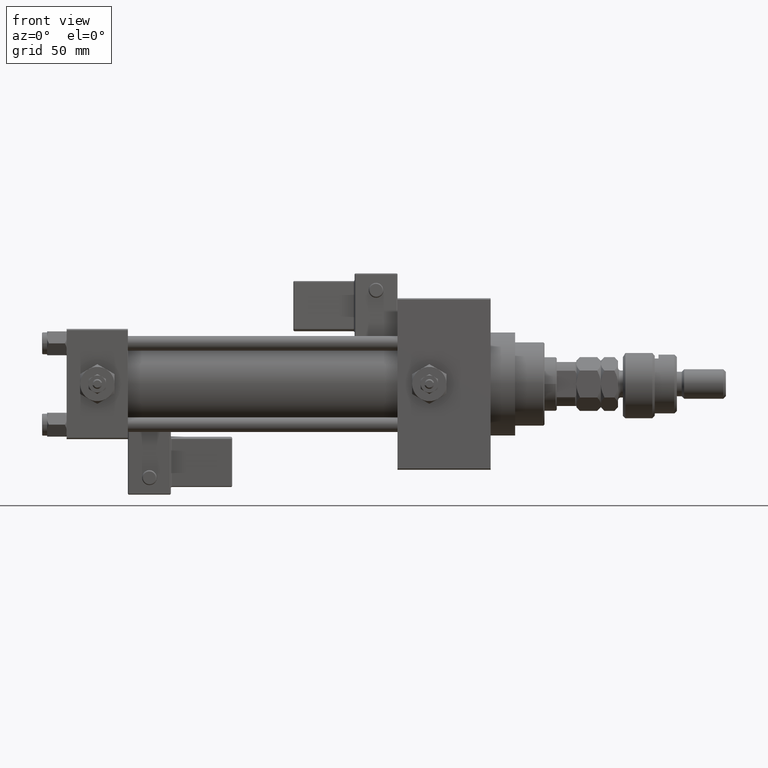
[diagram: clean part render]
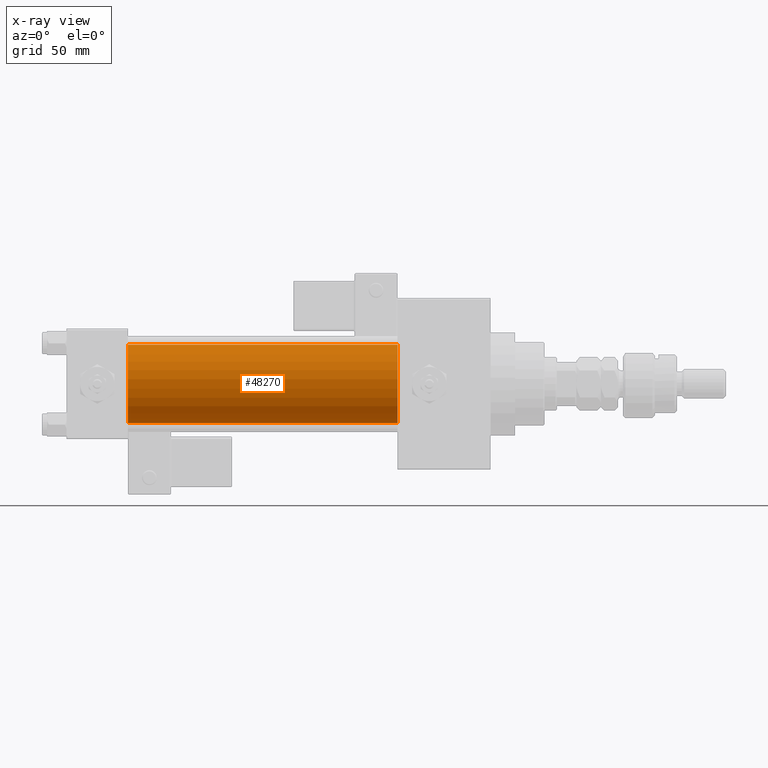
[diagram: x-ray — body ghosted, one internal face saturated and labeled with its STEP entity id]
A machine part, front view, then the same camera in x-ray: the body is ghosted and one INTERNAL B-rep face — a face not visible from any outside direction — is saturated and labeled: STEP entity #48270.
In plain terms, the highlighted cylindrical surface (partial cylindrical patch) has radius 16 mm, axis along (-1, -0, -0).
Its self-contained STEP definition (entity closure, byte-faithful):
#3831 = EDGE_LOOP ( 'NONE', ( #7526, #12708, #23180, #34249 ) ) ;
#7495 = CARTESIAN_POINT ( 'NONE',  ( 25.00000000000000000, -2.602085213965210642E-15, 0.000000000000000000 ) ) ;
#7526 = ORIENTED_EDGE ( 'NONE', *, *, #13356, .T. ) ;
#8480 = AXIS2_PLACEMENT_3D ( 'NONE', #51213, #21876, #50937 ) ;
#9049 = DIRECTION ( 'NONE',  ( -1.000000000000000000, -0.000000000000000000, -0.000000000000000000 ) ) ;
#9312 = VERTEX_POINT ( 'NONE', #38888 ) ;
#10536 = VERTEX_POINT ( 'NONE', #48845 ) ;
#12621 = LINE ( 'NONE', #37835, #23277 ) ;
#12708 = ORIENTED_EDGE ( 'NONE', *, *, #35826, .T. ) ;
#13178 = AXIS2_PLACEMENT_3D ( 'NONE', #7495, #35495, #52213 ) ;
#13356 = EDGE_CURVE ( 'NONE', #9312, #44017, #36502, .T. ) ;
#13543 = CYLINDRICAL_SURFACE ( 'NONE', #50180, 16.00000000000000000 ) ;
#14553 = DIRECTION ( 'NONE',  ( -1.000000000000000000, -0.000000000000000000, -0.000000000000000000 ) ) ;
#21876 = DIRECTION ( 'NONE',  ( 1.000000000000000000, 0.000000000000000000, 0.000000000000000000 ) ) ;
#21965 = LINE ( 'NONE', #34587, #43139 ) ;
#22566 = EDGE_CURVE ( 'NONE', #10536, #50647, #44711, .T. ) ;
#23180 = ORIENTED_EDGE ( 'NONE', *, *, #22566, .F. ) ;
#23277 = VECTOR ( 'NONE', #9049, 1000.000000000000000 ) ;
#26163 = DIRECTION ( 'NONE',  ( 0.000000000000000000, 0.000000000000000000, 1.000000000000000000 ) ) ;
#30543 = CARTESIAN_POINT ( 'NONE',  ( 135.0000000000000000, -2.602085213965210642E-15, 0.000000000000000000 ) ) ;
#34249 = ORIENTED_EDGE ( 'NONE', *, *, #47256, .F. ) ;
#34587 = CARTESIAN_POINT ( 'NONE',  ( 135.0000000000000000, -2.602085213965210642E-15, 16.00000000000000000 ) ) ;
#34932 = CARTESIAN_POINT ( 'NONE',  ( 135.0000000000000000, -6.426503353294456087E-16, -16.00000000000000000 ) ) ;
#35194 = DIRECTION ( 'NONE',  ( -1.000000000000000000, -0.000000000000000000, -0.000000000000000000 ) ) ;
#35495 = DIRECTION ( 'NONE',  ( 1.000000000000000000, 0.000000000000000000, 0.000000000000000000 ) ) ;
#35826 = EDGE_CURVE ( 'NONE', #44017, #50647, #12621, .T. ) ;
#36502 = CIRCLE ( 'NONE', #8480, 16.00000000000000000 ) ;
#37835 = CARTESIAN_POINT ( 'NONE',  ( 135.0000000000000000, -6.426503353294456087E-16, -16.00000000000000000 ) ) ;
#38888 = CARTESIAN_POINT ( 'NONE',  ( 135.0000000000000000, -2.602085213965210642E-15, 16.00000000000000000 ) ) ;
#43139 = VECTOR ( 'NONE', #14553, 1000.000000000000000 ) ;
#43678 = FACE_OUTER_BOUND ( 'NONE', #3831, .T. ) ;
#44017 = VERTEX_POINT ( 'NONE', #34932 ) ;
#44711 = CIRCLE ( 'NONE', #13178, 16.00000000000000000 ) ;
#47163 = CARTESIAN_POINT ( 'NONE',  ( 25.00000000000000000, -6.426503353294456087E-16, -16.00000000000000000 ) ) ;
#47256 = EDGE_CURVE ( 'NONE', #9312, #10536, #21965, .T. ) ;
#48270 = ADVANCED_FACE ( 'NONE', ( #43678 ), #13543, .F. ) ;
#48845 = CARTESIAN_POINT ( 'NONE',  ( 25.00000000000000000, -2.602085213965210642E-15, 16.00000000000000000 ) ) ;
#50180 = AXIS2_PLACEMENT_3D ( 'NONE', #30543, #35194, #26163 ) ;
#50647 = VERTEX_POINT ( 'NONE', #47163 ) ;
#50937 = DIRECTION ( 'NONE',  ( 0.000000000000000000, 0.000000000000000000, -1.000000000000000000 ) ) ;
#51213 = CARTESIAN_POINT ( 'NONE',  ( 135.0000000000000000, -2.602085213965210642E-15, 0.000000000000000000 ) ) ;
#52213 = DIRECTION ( 'NONE',  ( 0.000000000000000000, 0.000000000000000000, -1.000000000000000000 ) ) ;